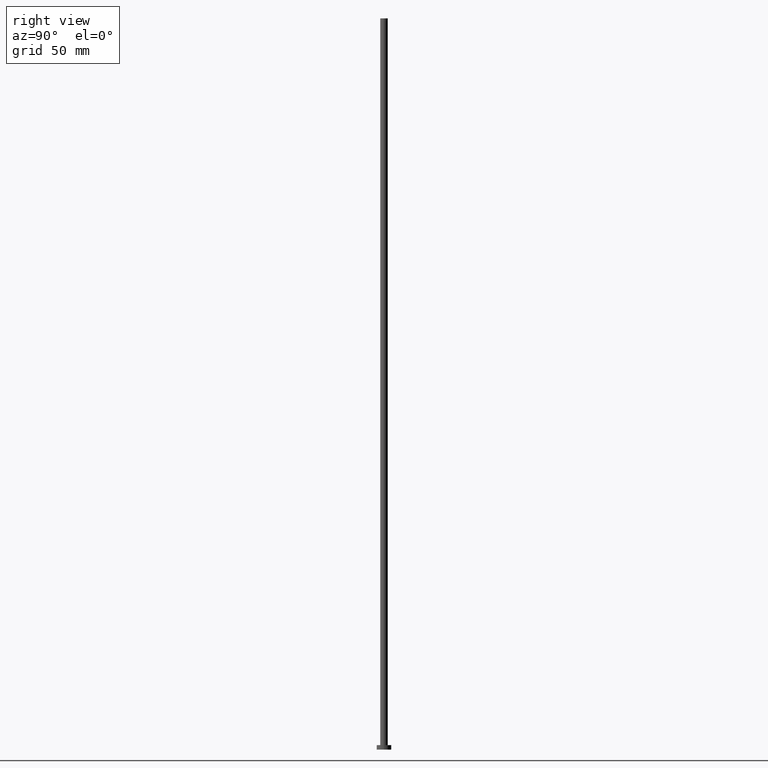
[diagram: clean part render]
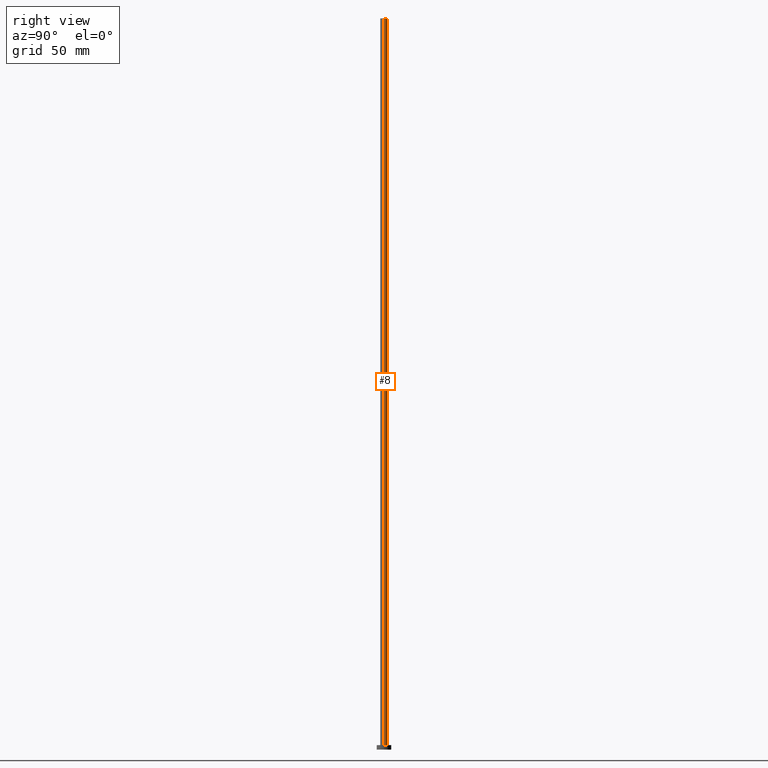
[diagram: same view with one face highlighted and labeled with its STEP entity id]
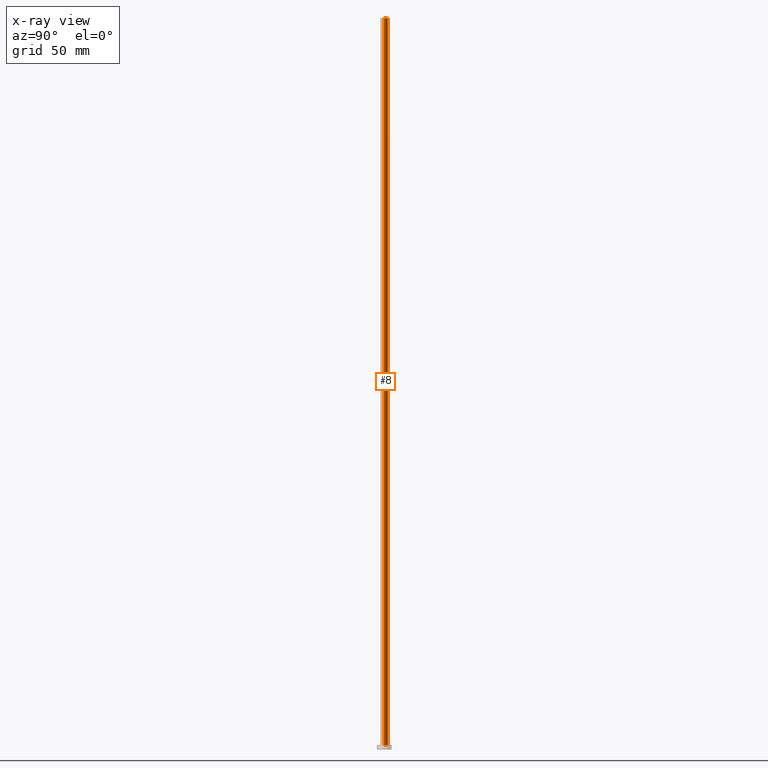
[diagram: x-ray of the same camera — body ghosted, the highlighted face saturated]
A machine part, right view. The second image highlights one B-rep face of the part: STEP entity #8.
The next image is the same camera in x-ray: the body ghosted, the highlighted face saturated — about 0% of this face is hidden behind the body in this view.
In plain terms, the highlighted cylindrical surface (edge-blend (fillet) strip) has radius 2.6 mm, axis along (-0, -0, -1).
Its self-contained STEP definition (entity closure, byte-faithful):
#4 = DIRECTION ( 'NONE',  ( -0.000000000000000000, -0.000000000000000000, -1.000000000000000000 ) ) ;
#5 = DIRECTION ( 'NONE',  ( 0.000000000000000000, 0.000000000000000000, 1.000000000000000000 ) ) ;
#6 = CARTESIAN_POINT ( 'NONE',  ( 2.600000000000000089, 3.184081677783117698E-16, 500.0000000000000000 ) ) ;
#8 = ADVANCED_FACE ( 'NONE', ( #142 ), #243, .T. ) ;
#18 = LINE ( 'NONE', #62, #42 ) ;
#22 = CARTESIAN_POINT ( 'NONE',  ( 0.000000000000000000, 0.000000000000000000, 500.0000000000000000 ) ) ;
#29 = ORIENTED_EDGE ( 'NONE', *, *, #83, .T. ) ;
#37 = DIRECTION ( 'NONE',  ( -0.000000000000000000, -0.000000000000000000, -1.000000000000000000 ) ) ;
#41 = DIRECTION ( 'NONE',  ( -0.000000000000000000, -0.000000000000000000, -1.000000000000000000 ) ) ;
#42 = VECTOR ( 'NONE', #37, 1000.000000000000000 ) ;
#50 = VERTEX_POINT ( 'NONE', #247 ) ;
#53 = ORIENTED_EDGE ( 'NONE', *, *, #183, .F. ) ;
#62 = CARTESIAN_POINT ( 'NONE',  ( -2.600000000000000089, 0.000000000000000000, 500.0000000000000000 ) ) ;
#70 = ORIENTED_EDGE ( 'NONE', *, *, #169, .T. ) ;
#74 = EDGE_LOOP ( 'NONE', ( #53, #70, #29, #108 ) ) ;
#80 = CARTESIAN_POINT ( 'NONE',  ( -2.600000000000000089, 0.000000000000000000, 500.0000000000000000 ) ) ;
#82 = DIRECTION ( 'NONE',  ( 0.000000000000000000, 0.000000000000000000, 1.000000000000000000 ) ) ;
#83 = EDGE_CURVE ( 'NONE', #194, #50, #157, .T. ) ;
#85 = AXIS2_PLACEMENT_3D ( 'NONE', #105, #41, #184 ) ;
#91 = VECTOR ( 'NONE', #4, 1000.000000000000000 ) ;
#98 = EDGE_CURVE ( 'NONE', #171, #50, #18, .T. ) ;
#105 = CARTESIAN_POINT ( 'NONE',  ( 0.000000000000000000, 0.000000000000000000, 500.0000000000000000 ) ) ;
#108 = ORIENTED_EDGE ( 'NONE', *, *, #98, .F. ) ;
#111 = CARTESIAN_POINT ( 'NONE',  ( 2.600000000000000089, 3.184081677783117698E-16, 3.000000000000000000 ) ) ;
#142 = FACE_OUTER_BOUND ( 'NONE', #74, .T. ) ;
#156 = AXIS2_PLACEMENT_3D ( 'NONE', #228, #5, #200 ) ;
#157 = CIRCLE ( 'NONE', #156, 2.600000000000000089 ) ;
#162 = AXIS2_PLACEMENT_3D ( 'NONE', #22, #82, #166 ) ;
#166 = DIRECTION ( 'NONE',  ( 1.000000000000000000, 0.000000000000000000, 0.000000000000000000 ) ) ;
#169 = EDGE_CURVE ( 'NONE', #238, #194, #175, .T. ) ;
#171 = VERTEX_POINT ( 'NONE', #80 ) ;
#175 = LINE ( 'NONE', #6, #91 ) ;
#183 = EDGE_CURVE ( 'NONE', #238, #171, #244, .T. ) ;
#184 = DIRECTION ( 'NONE',  ( -1.000000000000000000, 0.000000000000000000, 0.000000000000000000 ) ) ;
#185 = CARTESIAN_POINT ( 'NONE',  ( 2.600000000000000089, 3.184081677783117698E-16, 500.0000000000000000 ) ) ;
#194 = VERTEX_POINT ( 'NONE', #111 ) ;
#200 = DIRECTION ( 'NONE',  ( 1.000000000000000000, 0.000000000000000000, 0.000000000000000000 ) ) ;
#228 = CARTESIAN_POINT ( 'NONE',  ( 0.000000000000000000, 0.000000000000000000, 3.000000000000000000 ) ) ;
#238 = VERTEX_POINT ( 'NONE', #185 ) ;
#243 = CYLINDRICAL_SURFACE ( 'NONE', #85, 2.600000000000000089 ) ;
#244 = CIRCLE ( 'NONE', #162, 2.600000000000000089 ) ;
#247 = CARTESIAN_POINT ( 'NONE',  ( -2.600000000000000089, 0.000000000000000000, 3.000000000000000000 ) ) ;